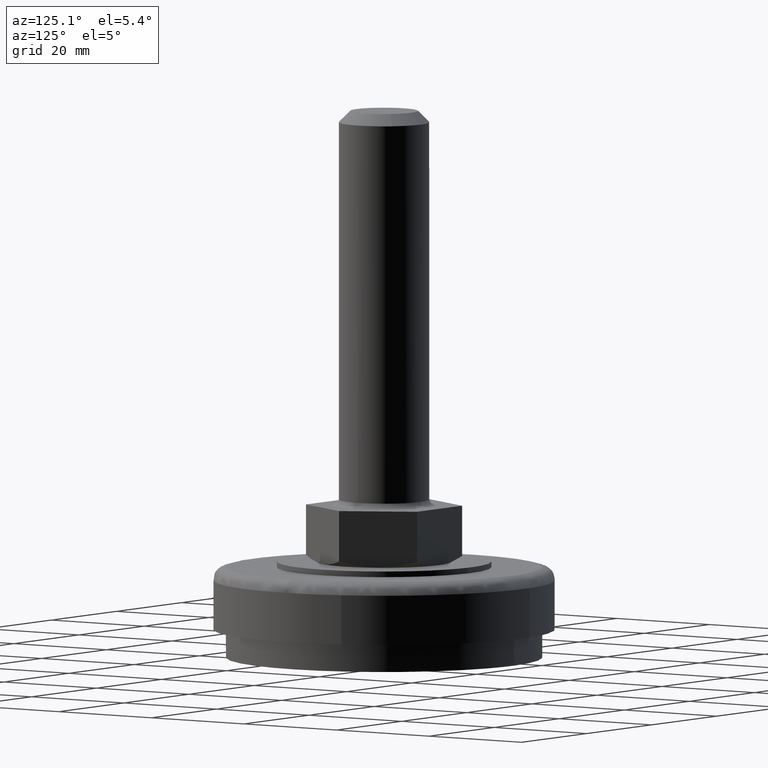
[diagram: clean part render]
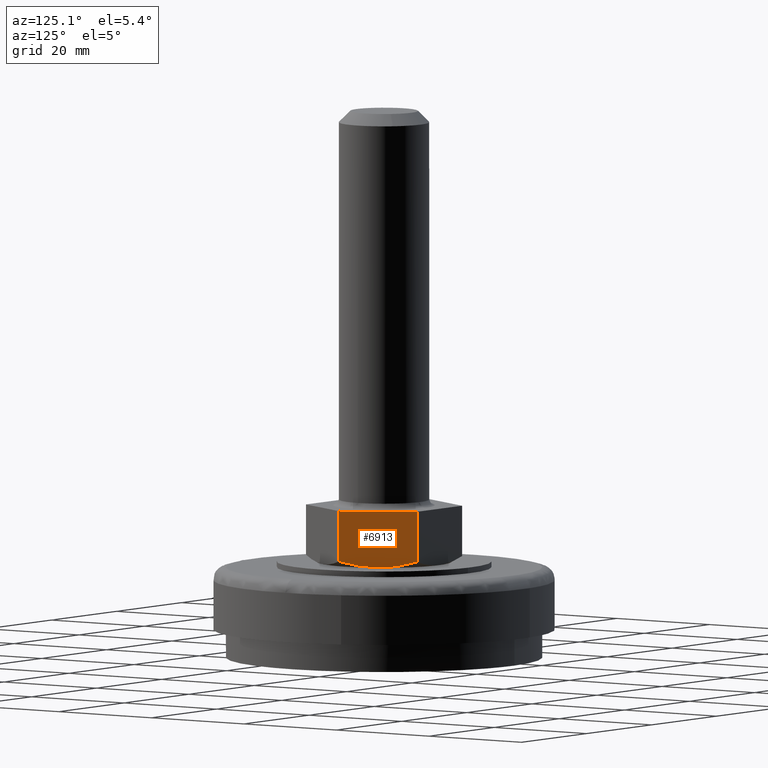
[diagram: same view with one face highlighted and labeled with its STEP entity id]
A machine part, auxiliary view. The second image highlights one B-rep face of the part: STEP entity #6913.
In plain terms, the highlighted face is a freeform B-spline surface patch.
Its self-contained STEP definition (entity closure, byte-faithful):
#5112=CARTESIAN_POINT('',(10.439837254229619,5.906575727528164,17.000759792401851));
#5113=VERTEX_POINT('',#5112);
#5114=CARTESIAN_POINT('',(6.921797000000001,12.0,18.073646796981301));
#5115=VERTEX_POINT('',#5114);
#5116=CARTESIAN_POINT('',(10.439837254229619,5.906575727528164,17.000759792401851));
#5117=CARTESIAN_POINT('',(10.424037776088751,5.933940833854721,17.000600360546230));
#5118=CARTESIAN_POINT('',(10.408233279041729,5.961315026638076,17.000512852838821));
#5119=CARTESIAN_POINT('',(10.245161909326670,6.243762933632245,17.000358269839001));
#5120=CARTESIAN_POINT('',(10.097155733148259,6.500117159127802,17.006529891489730));
#5121=CARTESIAN_POINT('',(9.802498824526396,7.010477912625110,17.031294519301120));
#5122=CARTESIAN_POINT('',(9.655682797952473,7.264770738468560,17.049859409899408));
#5123=CARTESIAN_POINT('',(9.216705319829432,8.025102059227567,17.123297280416310));
#5124=CARTESIAN_POINT('',(8.926017900959499,8.528587454565903,17.195954855953602));
#5125=CARTESIAN_POINT('',(8.059134931252517,10.030072852220080,17.476417054108659));
#5126=CARTESIAN_POINT('',(7.488098331186357,11.019137289390001,17.746465787438879));
#5127=CARTESIAN_POINT('',(6.921797000000001,12.0,18.073646796981301));
#5128=B_SPLINE_CURVE_WITH_KNOTS('',3,(#5116,#5117,#5118,#5119,#5120,#5121,#5122,#5123,#5124,#5125,#5126,#5127),.UNSPECIFIED.,.F.,.U.,(4,2,2,2,2,4),(0.493290130087123,0.500000000000000,0.562500000000000,0.625000000000000,0.750000000000000,1.0),.UNSPECIFIED.);
#5129=EDGE_CURVE('',#5113,#5115,#5128,.T.);
#5254=CARTESIAN_POINT('',(13.850000000000000,6.276014E-017,18.071796703249699));
#5255=VERTEX_POINT('',#5254);
#5256=CARTESIAN_POINT('',(13.850000000000000,6.276014E-017,18.071796703249699));
#5257=CARTESIAN_POINT('',(13.284368375614800,0.979702744365596,17.745229132648451));
#5258=CARTESIAN_POINT('',(12.714610914459509,1.966551647878317,17.476105887228030));
#5259=CARTESIAN_POINT('',(11.851057302962330,3.462270427764837,17.196578902516428));
#5260=CARTESIAN_POINT('',(11.561716297652980,3.963423766330731,17.124145855175620));
#5261=CARTESIAN_POINT('',(10.995284574463790,4.944512322522045,17.028852786995419));
#5262=CARTESIAN_POINT('',(10.718367378472230,5.424146991410758,17.003576808295499));
#5263=CARTESIAN_POINT('',(10.439837254229619,5.906575727528164,17.000759792401851));
#5264=B_SPLINE_CURVE_WITH_KNOTS('',3,(#5256,#5257,#5258,#5259,#5260,#5261,#5262,#5263),.UNSPECIFIED.,.F.,.U.,(4,2,2,4),(0.0,0.250000000000000,0.375000000000000,0.493290130087123),.UNSPECIFIED.);
#5265=EDGE_CURVE('',#5255,#5113,#5264,.T.);
#6767=CARTESIAN_POINT('',(6.921797000000001,12.0,27.0));
#6768=VERTEX_POINT('',#6767);
#6795=CARTESIAN_POINT('',(13.850000000000000,0.0,27.0));
#6796=VERTEX_POINT('',#6795);
#6802=CARTESIAN_POINT('',(6.921797000000001,12.0,27.0));
#6803=CARTESIAN_POINT('',(13.850000000000000,0.0,27.0));
#6804=QUASI_UNIFORM_CURVE('',1,(#6802,#6803),.UNSPECIFIED.,.F.,.U.);
#6805=EDGE_CURVE('',#6768,#6796,#6804,.T.);
#6888=CARTESIAN_POINT('',(13.850000000000000,0.0,27.0));
#6889=CARTESIAN_POINT('',(13.850000000000000,6.276014E-017,18.071796703249699));
#6890=QUASI_UNIFORM_CURVE('',1,(#6888,#6889),.UNSPECIFIED.,.F.,.U.);
#6891=EDGE_CURVE('',#6796,#5255,#6890,.T.);
#6897=CARTESIAN_POINT('',(14.196063856495790,-0.599400202036522,16.501297059350261));
#6898=CARTESIAN_POINT('',(6.575733081561218,12.599400309324860,16.501297059350261));
#6899=CARTESIAN_POINT('',(14.196063856495790,-0.599400202036522,27.499462330691031));
#6900=CARTESIAN_POINT('',(6.575733081561218,12.599400309324860,27.499462330691031));
#6901=B_SPLINE_SURFACE_WITH_KNOTS('',1,1,((#6897,#6899),(#6898,#6900)),.UNSPECIFIED.,.F.,.F.,.U.,(2,2),(2,2),(0.0,15.240661929789290),(0.0,10.998165271340770),.UNSPECIFIED.);
#6902=ORIENTED_EDGE('',*,*,#6891,.T.);
#6903=ORIENTED_EDGE('',*,*,#5265,.T.);
#6904=ORIENTED_EDGE('',*,*,#5129,.T.);
#6905=CARTESIAN_POINT('',(6.921797000000001,12.0,27.0));
#6906=CARTESIAN_POINT('',(6.921797000000001,12.0,18.073646796981301));
#6907=QUASI_UNIFORM_CURVE('',1,(#6905,#6906),.UNSPECIFIED.,.F.,.U.);
#6908=EDGE_CURVE('',#6768,#5115,#6907,.T.);
#6909=ORIENTED_EDGE('',*,*,#6908,.F.);
#6910=ORIENTED_EDGE('',*,*,#6805,.T.);
#6911=EDGE_LOOP('',(#6902,#6903,#6904,#6909,#6910));
#6912=FACE_OUTER_BOUND('',#6911,.T.);
#6913=ADVANCED_FACE('',(#6912),#6901,.T.);